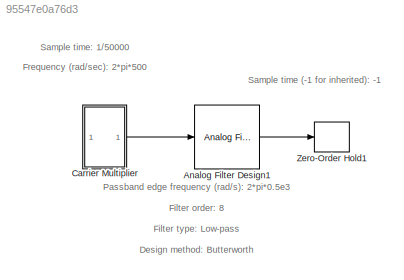
MODEL slx_95547e0a76d3
KIND model
CONFIG AbsTol = auto
CONFIG EnableMultiTasking = off
CONFIG FixedStep = auto
CONFIG MaxStep = auto
CONFIG MinStep = auto
CONFIG RelTol = 1e-3
CONFIG SampleTimeConstraint = Unconstrained
CONFIG SolverName = VariableStepAuto
CONFIG StartTime = 0.0
CONFIG StopTime = 10.0
BLOCK [Reference] Analog Filter Design1  REF=dsparch4/Analog
Filter Design
  Ports = [1, 1]
  SourceBlock = dsparch4/Analog\nFilter Design
  SourceProductBaseCode = DS
  SourceType = Analog Filter Design
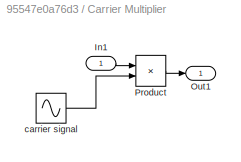
BLOCK [SubSystem] Carrier Multiplier
  Ports = [1, 1]
  RequestExecContextInheritance = off
BLOCK [Inport] Carrier Multiplier/In1
BLOCK [Outport] Carrier Multiplier/Out1
BLOCK [Product] Carrier Multiplier/Product
  Ports = [2, 1]
BLOCK [Sin] Carrier Multiplier/carrier signal
  Frequency = 2*pi*500
  Phase = pi/2
  Ports = [0, 1]
  SampleTime = 1/50000
BLOCK [ZeroOrderHold] Zero-Order Hold1
  SampleTime = -1
ANNOTATION (root): Frequency (rad/sec): 2*pi*500
ANNOTATION (root): Design method: Butterworth
ANNOTATION (root): Filter order: 8
ANNOTATION (root): Filter type: Low-pass
ANNOTATION (root): Passband edge frequency (rad/s): 2*pi*0.5e3
ANNOTATION (root): Sample time (-1 for inherited): -1
ANNOTATION (root): Sample time: 1/50000
LINE Analog Filter Design1:1 -> Zero-Order Hold1:1
LINE Carrier Multiplier/In1:1 -> Carrier Multiplier/Product:1
LINE Carrier Multiplier/Product:1 -> Carrier Multiplier/Out1:1
LINE Carrier Multiplier/carrier signal:1 -> Carrier Multiplier/Product:2
LINE Carrier Multiplier:1 -> Analog Filter Design1:1
